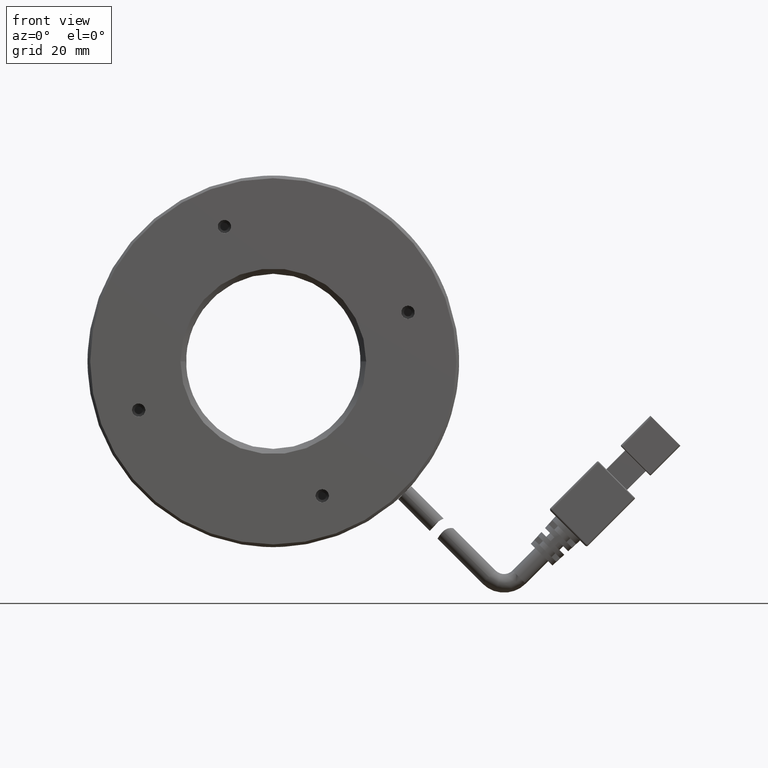
[diagram: clean part render]
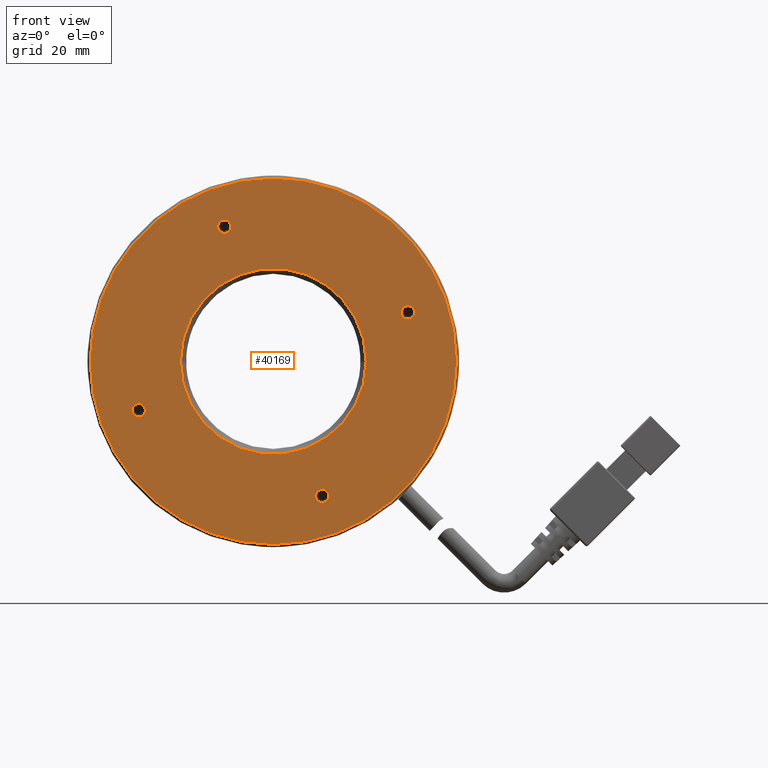
[diagram: same view with one face highlighted and labeled with its STEP entity id]
A machine part, front view. The second image highlights one B-rep face of the part: STEP entity #40169.
In plain terms, the highlighted planar face has unit normal (-0, 1, 0).
Its self-contained STEP definition (entity closure, byte-faithful):
#1167 = CIRCLE ( 'NONE', #77459, 1.249999999999992500 ) ;
#1465 = EDGE_CURVE ( 'NONE', #76156, #23399, #63936, .T. ) ;
#2262 = AXIS2_PLACEMENT_3D ( 'NONE', #46592, #7275, #53121 ) ;
#3921 = DIRECTION ( 'NONE',  ( -0.0000000000000000000, -1.000000000000000000, -0.0000000000000000000 ) ) ;
#4502 = VERTEX_POINT ( 'NONE', #32943 ) ;
#6017 = CIRCLE ( 'NONE', #6172, 1.249999999999994200 ) ;
#6172 = AXIS2_PLACEMENT_3D ( 'NONE', #46850, #7561, #53379 ) ;
#7275 = DIRECTION ( 'NONE',  ( -0.0000000000000000000, -1.000000000000000000, -0.0000000000000000000 ) ) ;
#7466 = VERTEX_POINT ( 'NONE', #8142 ) ;
#7561 = DIRECTION ( 'NONE',  ( -0.0000000000000000000, -1.000000000000000000, -0.0000000000000000000 ) ) ;
#8142 = CARTESIAN_POINT ( 'NONE',  ( -34.13563916203412400, -4.279814118402002900, 24.12170076121958200 ) ) ;
#8154 = CARTESIAN_POINT ( 'NONE',  ( 0.4485614332657740200, -4.279814118402002900, 7.962499834080205100 ) ) ;
#8604 = CARTESIAN_POINT ( 'NONE',  ( -24.92313932795383400, -4.279814118402002900, 0.0000000000000000000 ) ) ;
#9671 = ORIENTED_EDGE ( 'NONE', *, *, #18047, .F. ) ;
#11015 = DIRECTION ( 'NONE',  ( -0.0000000000000000000, -1.000000000000000000, -0.0000000000000000000 ) ) ;
#11390 = FACE_BOUND ( 'NONE', #54015, .T. ) ;
#11565 = CARTESIAN_POINT ( 'NONE',  ( -24.92313932795383400, -4.279814118402002900, 0.0000000000000000000 ) ) ;
#11822 = CIRCLE ( 'NONE', #2262, 1.249999999999992500 ) ;
#11839 = DIRECTION ( 'NONE',  ( -1.982541115402063600E-016, -1.000000000000000000, 0.0000000000000000000 ) ) ;
#13533 = EDGE_CURVE ( 'NONE', #35797, #19231, #6017, .T. ) ;
#13577 = CARTESIAN_POINT ( 'NONE',  ( -50.29484008917337700, -4.279814118402002900, -7.962499834080386300 ) ) ;
#13595 = ORIENTED_EDGE ( 'NONE', *, *, #53614, .F. ) ;
#15161 = CARTESIAN_POINT ( 'NONE',  ( -50.29484008917337700, -4.279814118402002900, -10.46249983408037000 ) ) ;
#15210 = DIRECTION ( 'NONE',  ( 1.000000000000000000, -1.982541115402063600E-016, 0.0000000000000000000 ) ) ;
#15308 = DIRECTION ( 'NONE',  ( 0.0000000000000000000, 1.000000000000000000, 0.0000000000000000000 ) ) ;
#15594 = AXIS2_PLACEMENT_3D ( 'NONE', #68914, #69100, #69602 ) ;
#16466 = PLANE ( 'NONE',  #74058 ) ;
#17059 = VERTEX_POINT ( 'NONE', #84224 ) ;
#17215 = VERTEX_POINT ( 'NONE', #15161 ) ;
#18047 = EDGE_CURVE ( 'NONE', #69006, #7466, #82387, .T. ) ;
#18207 = DIRECTION ( 'NONE',  ( 0.0000000000000000000, 0.0000000000000000000, 1.000000000000000000 ) ) ;
#18600 = FACE_OUTER_BOUND ( 'NONE', #44765, .T. ) ;
#19231 = VERTEX_POINT ( 'NONE', #82146 ) ;
#20069 = ORIENTED_EDGE ( 'NONE', *, *, #33292, .F. ) ;
#20632 = FACE_BOUND ( 'NONE', #82719, .T. ) ;
#20900 = CIRCLE ( 'NONE', #50893, 34.50000000000000000 ) ;
#21818 = AXIS2_PLACEMENT_3D ( 'NONE', #22549, #68297, #29145 ) ;
#22549 = CARTESIAN_POINT ( 'NONE',  ( -34.13563916203412400, -4.279814118402002900, 25.37170076121957900 ) ) ;
#22770 = AXIS2_PLACEMENT_3D ( 'NONE', #50294, #11015, #56840 ) ;
#23399 = VERTEX_POINT ( 'NONE', #8154 ) ;
#23401 = DIRECTION ( 'NONE',  ( -0.0000000000000000000, 1.000000000000000000, 0.0000000000000000000 ) ) ;
#24038 = DIRECTION ( 'NONE',  ( -0.0000000000000000000, -1.000000000000000000, -0.0000000000000000000 ) ) ;
#25250 = CIRCLE ( 'NONE', #77324, 17.50000000000001400 ) ;
#25496 = ORIENTED_EDGE ( 'NONE', *, *, #1465, .F. ) ;
#27891 = VERTEX_POINT ( 'NONE', #30720 ) ;
#28064 = VERTEX_POINT ( 'NONE', #78087 ) ;
#29145 = DIRECTION ( 'NONE',  ( 0.0000000000000000000, 0.0000000000000000000, -1.000000000000000000 ) ) ;
#30720 = CARTESIAN_POINT ( 'NONE',  ( -24.92313932795383000, -4.279814118402002900, -34.50000000000000000 ) ) ;
#32359 = AXIS2_PLACEMENT_3D ( 'NONE', #8604, #54425, #15210 ) ;
#32943 = CARTESIAN_POINT ( 'NONE',  ( -24.92313932795383400, -4.279814118402002900, 34.50000000000000000 ) ) ;
#33292 = EDGE_CURVE ( 'NONE', #17215, #77427, #11822, .T. ) ;
#33764 = CARTESIAN_POINT ( 'NONE',  ( 0.4485614332657740200, -4.279814118402002900, 9.212499834080199800 ) ) ;
#35797 = VERTEX_POINT ( 'NONE', #50459 ) ;
#36082 = FACE_BOUND ( 'NONE', #65442, .T. ) ;
#36224 = ORIENTED_EDGE ( 'NONE', *, *, #49631, .F. ) ;
#39329 = ORIENTED_EDGE ( 'NONE', *, *, #13533, .F. ) ;
#39535 = ORIENTED_EDGE ( 'NONE', *, *, #70113, .F. ) ;
#39929 = EDGE_CURVE ( 'NONE', #23399, #76156, #59572, .T. ) ;
#40169 = ADVANCED_FACE ( 'NONE', ( #63665, #20632, #11390, #53327, #36082, #18600 ), #16466, .F. ) ;
#40349 = DIRECTION ( 'NONE',  ( 0.0000000000000000000, 0.0000000000000000000, -1.000000000000000000 ) ) ;
#43326 = CARTESIAN_POINT ( 'NONE',  ( -50.29484008917337700, -4.279814118402002900, -9.212499834080379200 ) ) ;
#44765 = EDGE_LOOP ( 'NONE', ( #84089, #13595 ) ) ;
#46350 = ORIENTED_EDGE ( 'NONE', *, *, #53450, .F. ) ;
#46592 = CARTESIAN_POINT ( 'NONE',  ( -50.29484008917337700, -4.279814118402002900, -9.212499834080379200 ) ) ;
#46787 = EDGE_CURVE ( 'NONE', #77427, #17215, #1167, .T. ) ;
#46850 = CARTESIAN_POINT ( 'NONE',  ( -15.71063949387337100, -4.279814118402002900, -25.37170076121951100 ) ) ;
#48779 = AXIS2_PLACEMENT_3D ( 'NONE', #63202, #24038, #69760 ) ;
#49631 = EDGE_CURVE ( 'NONE', #19231, #35797, #83430, .T. ) ;
#49828 = DIRECTION ( 'NONE',  ( 0.0000000000000000000, 0.0000000000000000000, -1.000000000000000000 ) ) ;
#50188 = EDGE_LOOP ( 'NONE', ( #78912, #25496 ) ) ;
#50294 = CARTESIAN_POINT ( 'NONE',  ( -34.13563916203412400, -4.279814118402002900, 25.37170076121957900 ) ) ;
#50459 = CARTESIAN_POINT ( 'NONE',  ( -15.71063949387337100, -4.279814118402002900, -24.12170076121951800 ) ) ;
#50893 = AXIS2_PLACEMENT_3D ( 'NONE', #11565, #57384, #18207 ) ;
#51090 = CARTESIAN_POINT ( 'NONE',  ( -24.92313932795383400, -4.279814118402002900, 0.0000000000000000000 ) ) ;
#51698 = CIRCLE ( 'NONE', #21818, 1.249999999999994200 ) ;
#53121 = DIRECTION ( 'NONE',  ( 0.0000000000000000000, 0.0000000000000000000, -1.000000000000000000 ) ) ;
#53327 = FACE_BOUND ( 'NONE', #50188, .T. ) ;
#53364 = EDGE_CURVE ( 'NONE', #4502, #27891, #59857, .T. ) ;
#53379 = DIRECTION ( 'NONE',  ( 0.0000000000000000000, 0.0000000000000000000, -1.000000000000000000 ) ) ;
#53450 = EDGE_CURVE ( 'NONE', #7466, #69006, #51698, .T. ) ;
#53614 = EDGE_CURVE ( 'NONE', #27891, #4502, #20900, .T. ) ;
#54015 = EDGE_LOOP ( 'NONE', ( #46350, #9671 ) ) ;
#54425 = DIRECTION ( 'NONE',  ( -1.982541115402063600E-016, -1.000000000000000000, 0.0000000000000000000 ) ) ;
#54537 = CARTESIAN_POINT ( 'NONE',  ( -24.92313932795383400, -4.279814118402002900, 0.0000000000000000000 ) ) ;
#56840 = DIRECTION ( 'NONE',  ( 0.0000000000000000000, 0.0000000000000000000, -1.000000000000000000 ) ) ;
#57011 = EDGE_LOOP ( 'NONE', ( #36224, #39329 ) ) ;
#57384 = DIRECTION ( 'NONE',  ( 0.0000000000000000000, 1.000000000000000000, 0.0000000000000000000 ) ) ;
#57582 = CARTESIAN_POINT ( 'NONE',  ( -34.13563916203412400, -4.279814118402002900, 26.62170076121957200 ) ) ;
#57660 = DIRECTION ( 'NONE',  ( 1.000000000000000000, -1.982541115402063600E-016, 0.0000000000000000000 ) ) ;
#58657 = ORIENTED_EDGE ( 'NONE', *, *, #63807, .F. ) ;
#59572 = CIRCLE ( 'NONE', #77373, 1.249999999999994200 ) ;
#59857 = CIRCLE ( 'NONE', #71677, 34.50000000000000000 ) ;
#61111 = DIRECTION ( 'NONE',  ( 0.0000000000000000000, 0.0000000000000000000, 1.000000000000000000 ) ) ;
#62565 = CARTESIAN_POINT ( 'NONE',  ( 10.07686067204617500, -4.279814118402002900, 0.0000000000000000000 ) ) ;
#63202 = CARTESIAN_POINT ( 'NONE',  ( -15.71063949387337100, -4.279814118402002900, -25.37170076121951100 ) ) ;
#63665 = FACE_BOUND ( 'NONE', #57011, .T. ) ;
#63807 = EDGE_CURVE ( 'NONE', #17059, #28064, #80285, .T. ) ;
#63936 = CIRCLE ( 'NONE', #15594, 1.249999999999994200 ) ;
#65442 = EDGE_LOOP ( 'NONE', ( #39535, #58657 ) ) ;
#68297 = DIRECTION ( 'NONE',  ( -0.0000000000000000000, -1.000000000000000000, -0.0000000000000000000 ) ) ;
#68914 = CARTESIAN_POINT ( 'NONE',  ( 0.4485614332657740200, -4.279814118402002900, 9.212499834080199800 ) ) ;
#69006 = VERTEX_POINT ( 'NONE', #57582 ) ;
#69100 = DIRECTION ( 'NONE',  ( -0.0000000000000000000, -1.000000000000000000, -0.0000000000000000000 ) ) ;
#69150 = DIRECTION ( 'NONE',  ( 0.0000000000000000000, -0.0000000000000000000, 1.000000000000000000 ) ) ;
#69602 = DIRECTION ( 'NONE',  ( 0.0000000000000000000, 0.0000000000000000000, -1.000000000000000000 ) ) ;
#69760 = DIRECTION ( 'NONE',  ( 0.0000000000000000000, 0.0000000000000000000, -1.000000000000000000 ) ) ;
#70113 = EDGE_CURVE ( 'NONE', #28064, #17059, #25250, .T. ) ;
#71677 = AXIS2_PLACEMENT_3D ( 'NONE', #54537, #15308, #61111 ) ;
#74058 = AXIS2_PLACEMENT_3D ( 'NONE', #62565, #23401, #69150 ) ;
#76156 = VERTEX_POINT ( 'NONE', #76860 ) ;
#76860 = CARTESIAN_POINT ( 'NONE',  ( 0.4485614332657741900, -4.279814118402002900, 10.46249983408019400 ) ) ;
#77324 = AXIS2_PLACEMENT_3D ( 'NONE', #51090, #11839, #57660 ) ;
#77373 = AXIS2_PLACEMENT_3D ( 'NONE', #33764, #79463, #40349 ) ;
#77427 = VERTEX_POINT ( 'NONE', #13577 ) ;
#77459 = AXIS2_PLACEMENT_3D ( 'NONE', #43326, #3921, #49828 ) ;
#78087 = CARTESIAN_POINT ( 'NONE',  ( -7.423139327953818700, -4.279814118402006400, 0.0000000000000000000 ) ) ;
#78912 = ORIENTED_EDGE ( 'NONE', *, *, #39929, .F. ) ;
#79463 = DIRECTION ( 'NONE',  ( -0.0000000000000000000, -1.000000000000000000, -0.0000000000000000000 ) ) ;
#80285 = CIRCLE ( 'NONE', #32359, 17.50000000000001400 ) ;
#80955 = ORIENTED_EDGE ( 'NONE', *, *, #46787, .F. ) ;
#82146 = CARTESIAN_POINT ( 'NONE',  ( -15.71063949387337100, -4.279814118402002900, -26.62170076121950400 ) ) ;
#82387 = CIRCLE ( 'NONE', #22770, 1.249999999999994200 ) ;
#82719 = EDGE_LOOP ( 'NONE', ( #20069, #80955 ) ) ;
#83430 = CIRCLE ( 'NONE', #48779, 1.249999999999994200 ) ;
#84089 = ORIENTED_EDGE ( 'NONE', *, *, #53364, .F. ) ;
#84224 = CARTESIAN_POINT ( 'NONE',  ( -42.42313932795384800, -4.279814118402000200, 2.143131898507869800E-015 ) ) ;